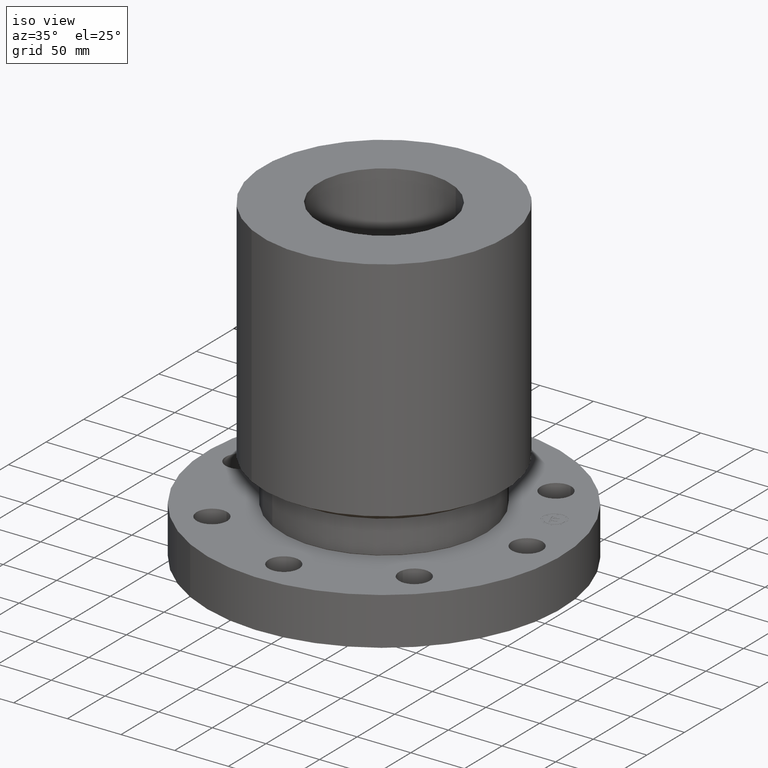
[diagram: clean part render]
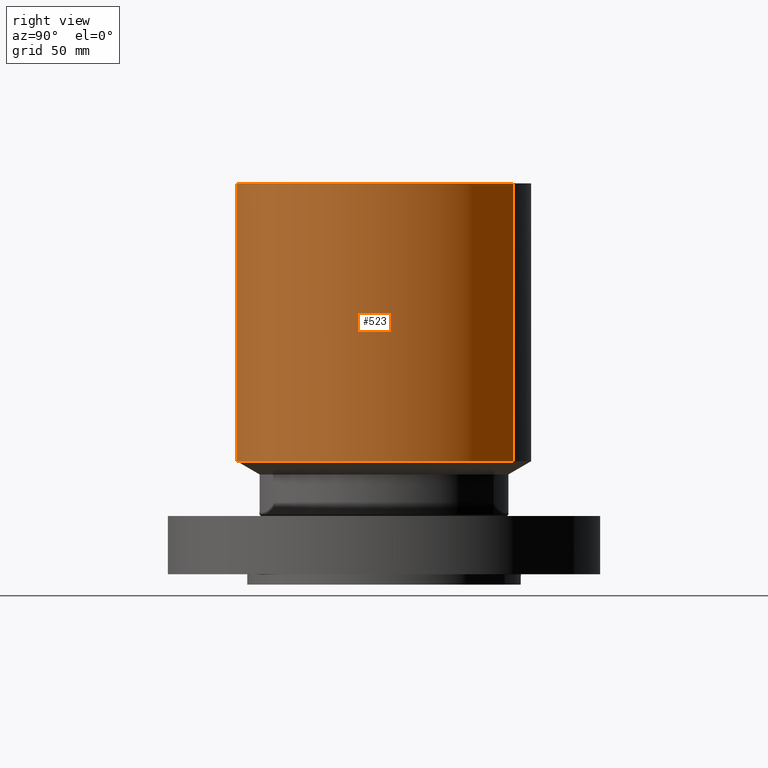
[diagram: tour spotlight — one face highlighted and labeled with its STEP entity id]
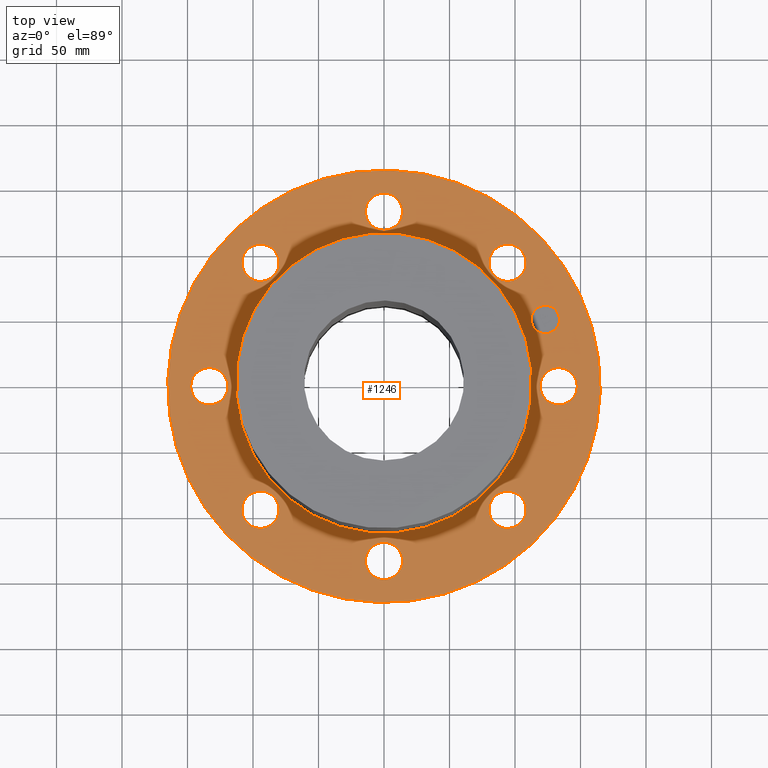
[diagram: tour spotlight — one face highlighted and labeled with its STEP entity id]
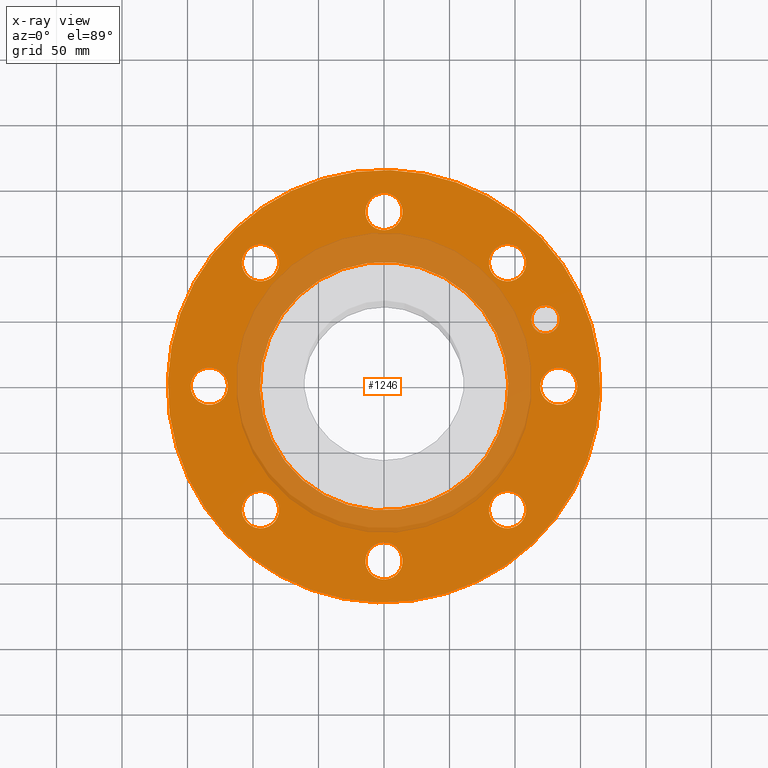
[diagram: x-ray of the same camera — body ghosted, this tour face saturated]
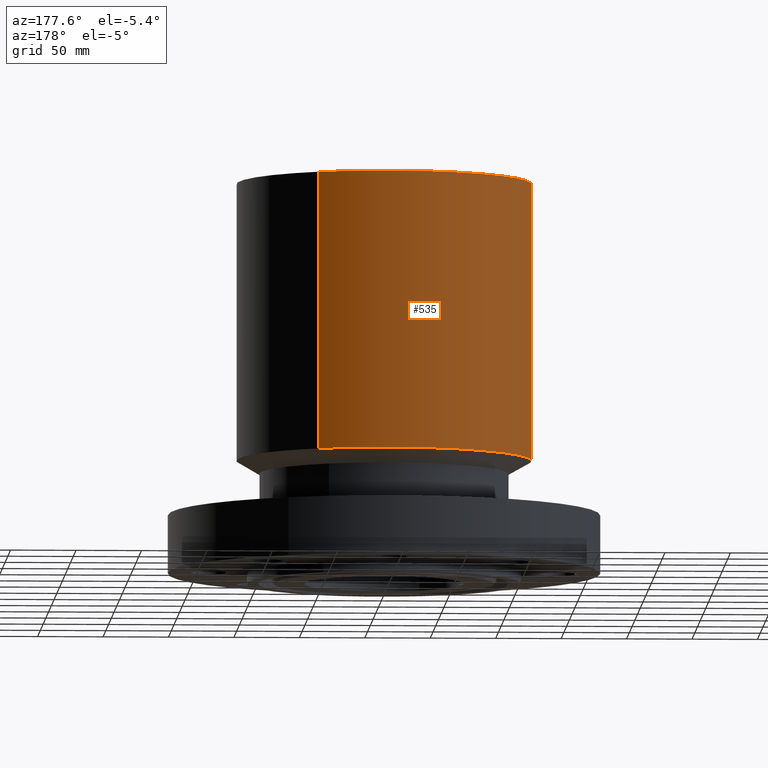
[diagram: tour spotlight — one face highlighted and labeled with its STEP entity id]
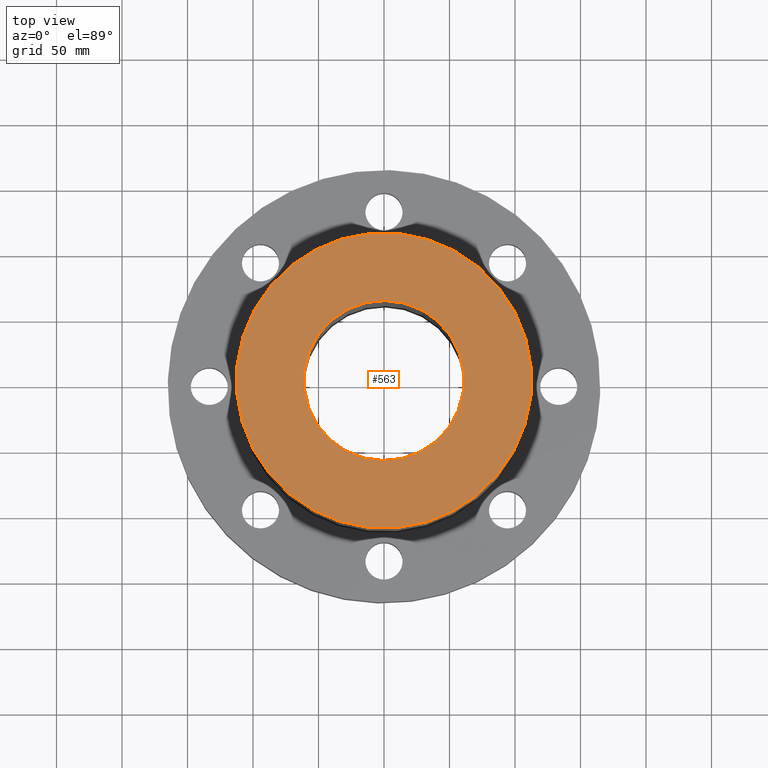
[diagram: tour spotlight — one face highlighted and labeled with its STEP entity id]
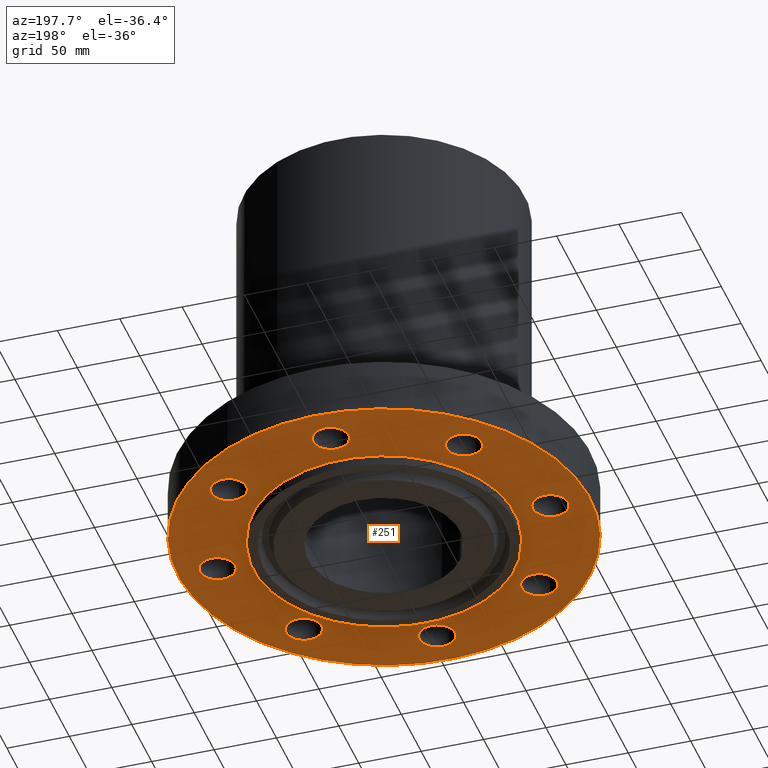
[diagram: tour spotlight — one face highlighted and labeled with its STEP entity id]
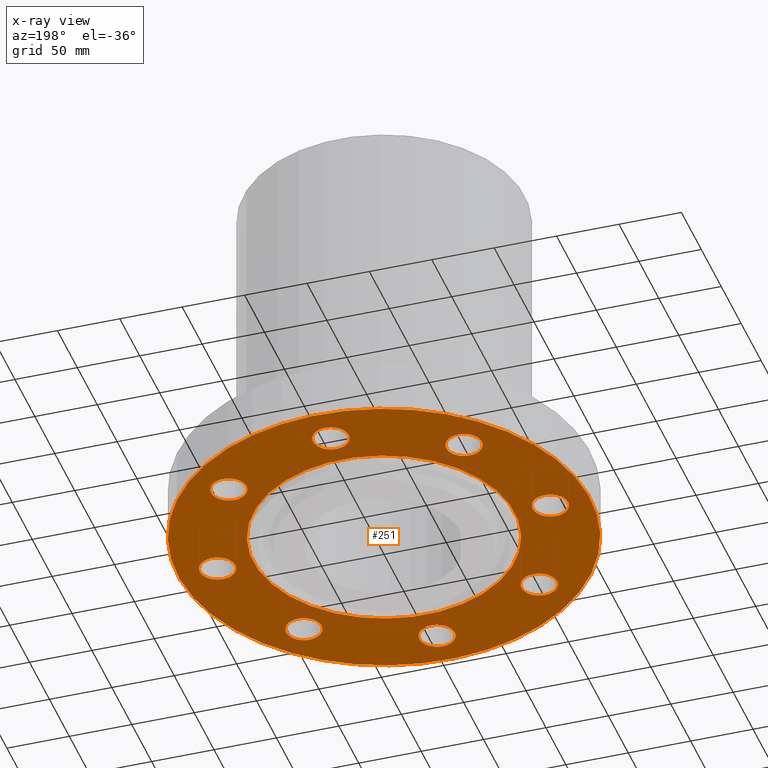
[diagram: x-ray of the same camera — body ghosted, this tour face saturated]
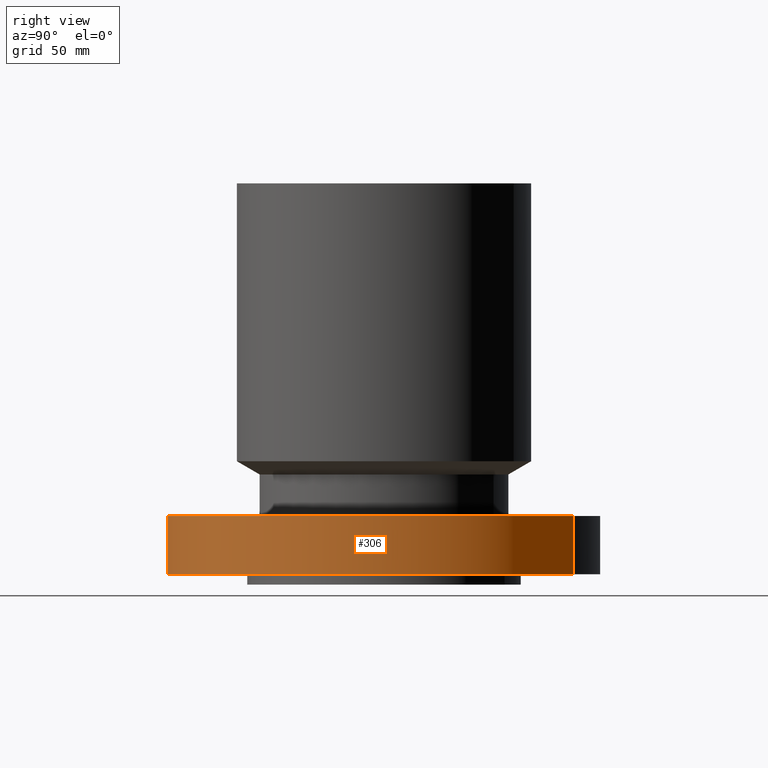
[diagram: tour spotlight — one face highlighted and labeled with its STEP entity id]
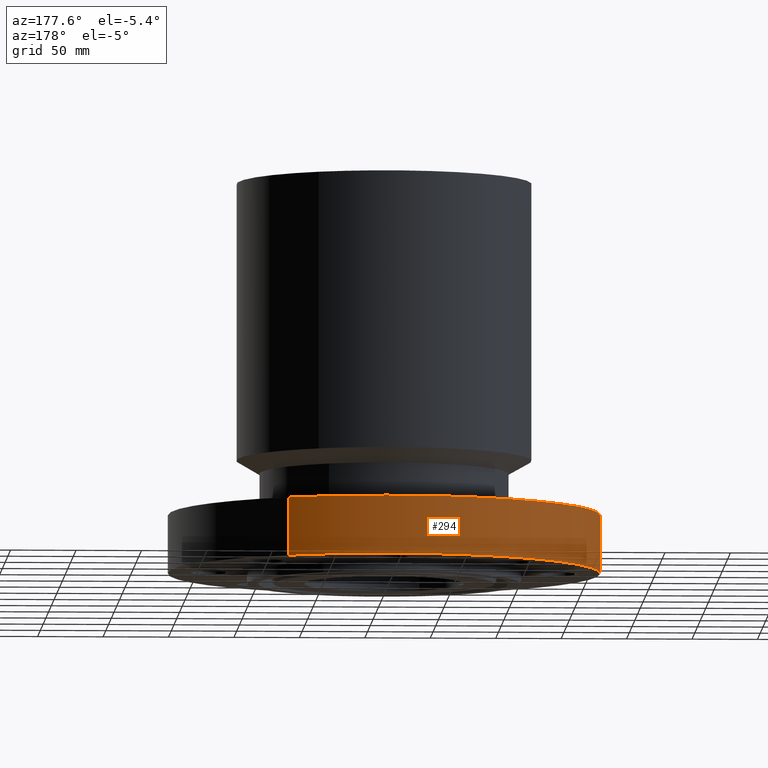
[diagram: tour spotlight — one face highlighted and labeled with its STEP entity id]
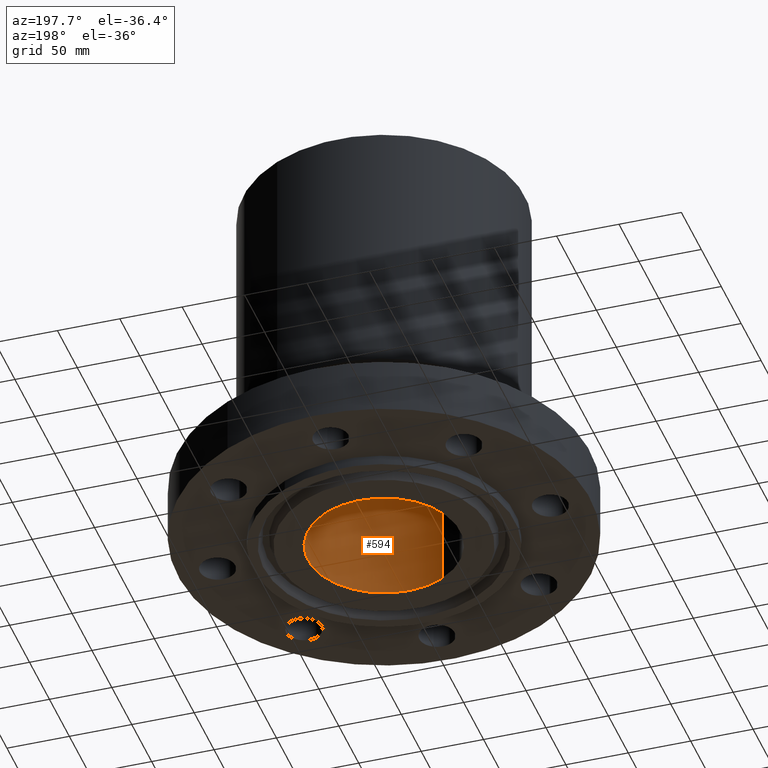
[diagram: tour spotlight — one face highlighted and labeled with its STEP entity id]
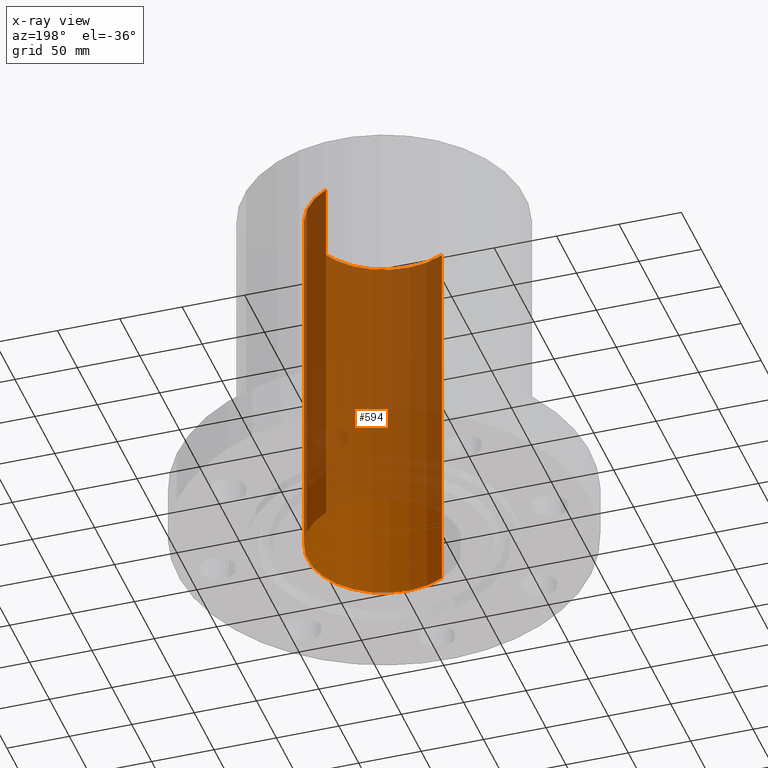
[diagram: x-ray of the same camera — body ghosted, this tour face saturated]
A machine part: a face-by-face anatomy tour. The part has 431 B-rep faces; the first image is the clean iso view, then the 8 largest visible faces are spotlighted one at a time (largest first), each with its STEP entity span.

Face 1 — right view, entity #523. In plain terms, the highlighted cylindrical surface (partial cylindrical patch) has radius 112.776 mm, axis along (0, 0, -1).
Definition (entity closure, byte-faithful):
#464=AXIS2_PLACEMENT_3D('Circle Axis2P3D',#462,#463,$) ;
#496=AXIS2_PLACEMENT_3D('Cylinder Axis2P3D',#493,#494,#495) ;
#507=AXIS2_PLACEMENT_3D('Circle Axis2P3D',#505,#506,$) ;
#459=CARTESIAN_POINT('Vertex',(2.12864939141,3.89646657481,3.39837168575)) ;
#462=CARTESIAN_POINT('Axis2P3D Location',(0.,0.,3.39837168575)) ;
#466=CARTESIAN_POINT('Vertex',(-2.12864939141,-3.89646657481,3.39837168575)) ;
#493=CARTESIAN_POINT('Axis2P3D Location',(0.,0.,5.71850000002)) ;
#498=CARTESIAN_POINT('Line Origine',(2.12864939141,3.89646657481,7.5741858429)) ;
#502=CARTESIAN_POINT('Vertex',(2.12864939141,3.89646657481,11.75)) ;
#505=CARTESIAN_POINT('Axis2P3D Location',(0.,0.,11.75)) ;
#509=CARTESIAN_POINT('Vertex',(-2.12864939141,-3.89646657481,11.75)) ;
#512=CARTESIAN_POINT('Line Origine',(-2.12864939141,-3.89646657481,7.5741858429)) ;
#463=DIRECTION('Axis2P3D Direction',(-0.,0.,0.0393700787402)) ;
#494=DIRECTION('Axis2P3D Direction',(0.,0.,-0.0393700787402)) ;
#495=DIRECTION('Axis2P3D XDirection',(-0.0188750212049,-0.0345504945626,0.)) ;
#499=DIRECTION('Vector Direction',(0.,0.,-0.0393700787402)) ;
#506=DIRECTION('Axis2P3D Direction',(0.,0.,-0.0393700787402)) ;
#513=DIRECTION('Vector Direction',(0.,0.,-0.0393700787402)) ;
#500=VECTOR('Line Direction',#499,0.0393700787402) ;
#514=VECTOR('Line Direction',#513,0.0393700787402) ;
#518=ORIENTED_EDGE('',*,*,#468,.F.) ;
#519=ORIENTED_EDGE('',*,*,#504,.T.) ;
#520=ORIENTED_EDGE('',*,*,#511,.T.) ;
#521=ORIENTED_EDGE('',*,*,#516,.F.) ;
#523=ADVANCED_FACE('PartBody',(#522),#497,.T.) ;
#465=CIRCLE('generated circle',#464,4.44000000002) ;
#508=CIRCLE('generated circle',#507,4.44000000002) ;
#497=CYLINDRICAL_SURFACE('generated cylinder',#496,4.44000000002) ;
#468=EDGE_CURVE('',#460,#467,#465,.F.) ;
#504=EDGE_CURVE('',#460,#503,#501,.F.) ;
#511=EDGE_CURVE('',#503,#510,#508,.T.) ;
#516=EDGE_CURVE('',#467,#510,#515,.F.) ;
#517=EDGE_LOOP('',(#518,#519,#520,#521)) ;
#522=FACE_OUTER_BOUND('',#517,.T.) ;
#501=LINE('Line',#498,#500) ;
#515=LINE('Line',#512,#514) ;
#460=VERTEX_POINT('',#459) ;
#467=VERTEX_POINT('',#466) ;
#503=VERTEX_POINT('',#502) ;
#510=VERTEX_POINT('',#509) ;

Face 2 — top view, entity #1246. An x-ray twin of the same camera follows (body ghosted, this face saturated) — the face is partly hidden behind the body. In plain terms, the highlighted planar face has unit normal (0, 0, -1).
Definition (entity closure, byte-faithful):
#51=AXIS2_PLACEMENT_3D('Circle Axis2P3D',#49,#50,$) ;
#254=AXIS2_PLACEMENT_3D('Circle Axis2P3D',#252,#253,$) ;
#278=AXIS2_PLACEMENT_3D('Circle Axis2P3D',#276,#277,$) ;
#297=AXIS2_PLACEMENT_3D('Circle Axis2P3D',#295,#296,$) ;
#314=AXIS2_PLACEMENT_3D('Circle Axis2P3D',#312,#313,$) ;
#349=AXIS2_PLACEMENT_3D('Circle Axis2P3D',#347,#348,$) ;
#896=AXIS2_PLACEMENT_3D('Circle Axis2P3D',#894,#895,$) ;
#915=AXIS2_PLACEMENT_3D('Circle Axis2P3D',#913,#914,$) ;
#939=AXIS2_PLACEMENT_3D('Circle Axis2P3D',#937,#938,$) ;
#958=AXIS2_PLACEMENT_3D('Circle Axis2P3D',#956,#957,$) ;
#982=AXIS2_PLACEMENT_3D('Circle Axis2P3D',#980,#981,$) ;
#1001=AXIS2_PLACEMENT_3D('Circle Axis2P3D',#999,#1000,$) ;
#1025=AXIS2_PLACEMENT_3D('Circle Axis2P3D',#1023,#1024,$) ;
#1044=AXIS2_PLACEMENT_3D('Circle Axis2P3D',#1042,#1043,$) ;
#1068=AXIS2_PLACEMENT_3D('Circle Axis2P3D',#1066,#1067,$) ;
#1087=AXIS2_PLACEMENT_3D('Circle Axis2P3D',#1085,#1086,$) ;
#1111=AXIS2_PLACEMENT_3D('Circle Axis2P3D',#1109,#1110,$) ;
#1130=AXIS2_PLACEMENT_3D('Circle Axis2P3D',#1128,#1129,$) ;
#1154=AXIS2_PLACEMENT_3D('Circle Axis2P3D',#1152,#1153,$) ;
#1173=AXIS2_PLACEMENT_3D('Circle Axis2P3D',#1171,#1172,$) ;
#1186=AXIS2_PLACEMENT_3D('Plane Axis2P3D',#1183,#1184,#1185) ;
#1230=AXIS2_PLACEMENT_3D('Circle Axis2P3D',#1228,#1229,$) ;
#1239=AXIS2_PLACEMENT_3D('Circle Axis2P3D',#1237,#1238,$) ;
#44=CARTESIAN_POINT('Vertex',(4.75855376536,-0.268478301619,1.75000000001)) ;
#49=CARTESIAN_POINT('Axis2P3D Location',(5.25000000002,0.,1.75000000001)) ;
#53=CARTESIAN_POINT('Vertex',(5.74144623468,0.268478301619,1.75000000001)) ;
#252=CARTESIAN_POINT('Axis2P3D Location',(5.25000000002,0.,1.75000000001)) ;
#273=CARTESIAN_POINT('Vertex',(-3.11626600094,-5.70428665231,1.75000000001)) ;
#276=CARTESIAN_POINT('Axis2P3D Location',(0.,0.,1.75000000001)) ;
#280=CARTESIAN_POINT('Vertex',(3.11626600094,5.70428665231,1.75000000001)) ;
#295=CARTESIAN_POINT('Axis2P3D Location',(0.,0.,1.75000000001)) ;
#312=CARTESIAN_POINT('Axis2P3D Location',(0.,0.,1.75000000001)) ;
#316=CARTESIAN_POINT('Vertex',(1.79065438669,3.27777086867,1.75000000001)) ;
#318=CARTESIAN_POINT('Vertex',(-1.79065438669,-3.27777086867,1.75000000001)) ;
#347=CARTESIAN_POINT('Axis2P3D Location',(0.,0.,1.75000000001)) ;
#891=CARTESIAN_POINT('Vertex',(3.17496280845,-3.5546484638,1.75000000001)) ;
#894=CARTESIAN_POINT('Axis2P3D Location',(3.71231060124,-3.71231060124,1.75000000001)) ;
#898=CARTESIAN_POINT('Vertex',(4.24965839404,-3.86997273868,1.75000000001)) ;
#913=CARTESIAN_POINT('Axis2P3D Location',(3.71231060124,-3.71231060124,1.75000000001)) ;
#934=CARTESIAN_POINT('Vertex',(-0.268478301619,-4.75855376536,1.75000000001)) ;
#937=CARTESIAN_POINT('Axis2P3D Location',(-7.97495153427E-016,-5.25000000002,1.75000000001)) ;
#941=CARTESIAN_POINT('Vertex',(0.268478301619,-5.74144623468,1.75000000001)) ;
#956=CARTESIAN_POINT('Axis2P3D Location',(-7.97495153427E-016,-5.25000000002,1.75000000001)) ;
#977=CARTESIAN_POINT('Vertex',(-3.5546484638,-3.17496280845,1.75000000001)) ;
#980=CARTESIAN_POINT('Axis2P3D Location',(-3.71231060124,-3.71231060124,1.75000000001)) ;
#984=CARTESIAN_POINT('Vertex',(-3.86997273868,-4.24965839404,1.75000000001)) ;
#999=CARTESIAN_POINT('Axis2P3D Location',(-3.71231060124,-3.71231060124,1.75000000001)) ;
#1020=CARTESIAN_POINT('Vertex',(-4.75855376536,0.268478301619,1.75000000001)) ;
#1023=CARTESIAN_POINT('Axis2P3D Location',(-5.25000000002,-6.42939569555E-016,1.75000000001)) ;
#1027=CARTESIAN_POINT('Vertex',(-5.74144623468,-0.268478301619,1.75000000001)) ;
#1042=CARTESIAN_POINT('Axis2P3D Location',(-5.25000000002,-6.42939569555E-016,1.75000000001)) ;
#1063=CARTESIAN_POINT('Vertex',(-3.17496280845,3.5546484638,1.75000000001)) ;
#1066=CARTESIAN_POINT('Axis2P3D Location',(-3.71231060124,3.71231060124,1.75000000001)) ;
#1070=CARTESIAN_POINT('Vertex',(-4.24965839404,3.86997273868,1.75000000001)) ;
#1085=CARTESIAN_POINT('Axis2P3D Location',(-3.71231060124,3.71231060124,1.75000000001)) ;
#1106=CARTESIAN_POINT('Vertex',(0.268478301619,4.75855376536,1.75000000001)) ;
#1109=CARTESIAN_POINT('Axis2P3D Location',(-9.64409354332E-016,5.25000000002,1.75000000001)) ;
#1113=CARTESIAN_POINT('Vertex',(-0.268478301619,5.74144623468,1.75000000001)) ;
#1128=CARTESIAN_POINT('Axis2P3D Location',(-9.64409354332E-016,5.25000000002,1.75000000001)) ;
#1149=CARTESIAN_POINT('Vertex',(3.5546484638,3.17496280845,1.75000000001)) ;
#1152=CARTESIAN_POINT('Axis2P3D Location',(3.71231060124,3.71231060124,1.75000000001)) ;
#1156=CARTESIAN_POINT('Vertex',(3.86997273868,4.24965839404,1.75000000001)) ;
#1171=CARTESIAN_POINT('Axis2P3D Location',(3.71231060124,3.71231060124,1.75000000001)) ;
#1183=CARTESIAN_POINT('Axis2P3D Location',(0.,6.50000000003,1.75000000001)) ;
#1228=CARTESIAN_POINT('Axis2P3D Location',(4.8503675457,2.00908801992,1.75000000001)) ;
#1232=CARTESIAN_POINT('Vertex',(5.01300800283,1.61643922253,1.75000000001)) ;
#1234=CARTESIAN_POINT('Vertex',(4.68772708857,2.40173681732,1.75000000001)) ;
#1237=CARTESIAN_POINT('Axis2P3D Location',(4.8503675457,2.00908801992,1.75000000001)) ;
#50=DIRECTION('Axis2P3D Direction',(0.,-0.,0.0393700787402)) ;
#253=DIRECTION('Axis2P3D Direction',(0.,-0.,0.0393700787402)) ;
#277=DIRECTION('Axis2P3D Direction',(0.,0.,-0.0393700787402)) ;
#296=DIRECTION('Axis2P3D Direction',(0.,0.,-0.0393700787402)) ;
#313=DIRECTION('Axis2P3D Direction',(0.,0.,-0.0393700787402)) ;
#348=DIRECTION('Axis2P3D Direction',(0.,0.,-0.0393700787402)) ;
#895=DIRECTION('Axis2P3D Direction',(-0.,0.,0.0393700787402)) ;
#914=DIRECTION('Axis2P3D Direction',(-0.,0.,0.0393700787402)) ;
#938=DIRECTION('Axis2P3D Direction',(-0.,0.,0.0393700787402)) ;
#957=DIRECTION('Axis2P3D Direction',(-0.,0.,0.0393700787402)) ;
#981=DIRECTION('Axis2P3D Direction',(0.,0.,0.0393700787402)) ;
#1000=DIRECTION('Axis2P3D Direction',(0.,0.,0.0393700787402)) ;
#1024=DIRECTION('Axis2P3D Direction',(0.,0.,0.0393700787402)) ;
#1043=DIRECTION('Axis2P3D Direction',(0.,0.,0.0393700787402)) ;
#1067=DIRECTION('Axis2P3D Direction',(0.,0.,0.0393700787402)) ;
#1086=DIRECTION('Axis2P3D Direction',(0.,0.,0.0393700787402)) ;
#1110=DIRECTION('Axis2P3D Direction',(0.,0.,0.0393700787402)) ;
#1129=DIRECTION('Axis2P3D Direction',(0.,0.,0.0393700787402)) ;
#1153=DIRECTION('Axis2P3D Direction',(0.,-0.,0.0393700787402)) ;
#1172=DIRECTION('Axis2P3D Direction',(0.,-0.,0.0393700787402)) ;
#1184=DIRECTION('Axis2P3D Direction',(0.,0.,-0.0393700787402)) ;
#1185=DIRECTION('Axis2P3D XDirection',(0.0393700787402,0.,0.)) ;
#1229=DIRECTION('Axis2P3D Direction',(0.,0.,-0.0393700787402)) ;
#1238=DIRECTION('Axis2P3D Direction',(0.,0.,-0.0393700787402)) ;
#1189=ORIENTED_EDGE('',*,*,#299,.F.) ;
#1190=ORIENTED_EDGE('',*,*,#282,.F.) ;
#1193=ORIENTED_EDGE('',*,*,#55,.T.) ;
#1194=ORIENTED_EDGE('',*,*,#256,.T.) ;
#1197=ORIENTED_EDGE('',*,*,#351,.T.) ;
#1198=ORIENTED_EDGE('',*,*,#320,.T.) ;
#1201=ORIENTED_EDGE('',*,*,#917,.T.) ;
#1202=ORIENTED_EDGE('',*,*,#900,.T.) ;
#1205=ORIENTED_EDGE('',*,*,#960,.T.) ;
#1206=ORIENTED_EDGE('',*,*,#943,.T.) ;
#1209=ORIENTED_EDGE('',*,*,#1003,.T.) ;
#1210=ORIENTED_EDGE('',*,*,#986,.T.) ;
#1213=ORIENTED_EDGE('',*,*,#1046,.T.) ;
#1214=ORIENTED_EDGE('',*,*,#1029,.T.) ;
#1217=ORIENTED_EDGE('',*,*,#1089,.T.) ;
#1218=ORIENTED_EDGE('',*,*,#1072,.T.) ;
#1221=ORIENTED_EDGE('',*,*,#1132,.T.) ;
#1222=ORIENTED_EDGE('',*,*,#1115,.T.) ;
#1225=ORIENTED_EDGE('',*,*,#1175,.T.) ;
#1226=ORIENTED_EDGE('',*,*,#1158,.T.) ;
#1243=ORIENTED_EDGE('',*,*,#1236,.F.) ;
#1244=ORIENTED_EDGE('',*,*,#1241,.F.) ;
#1195=FACE_BOUND('',#1192,.T.) ;
#1199=FACE_BOUND('',#1196,.T.) ;
#1203=FACE_BOUND('',#1200,.T.) ;
#1207=FACE_BOUND('',#1204,.T.) ;
#1211=FACE_BOUND('',#1208,.T.) ;
#1215=FACE_BOUND('',#1212,.T.) ;
#1219=FACE_BOUND('',#1216,.T.) ;
#1223=FACE_BOUND('',#1220,.T.) ;
#1227=FACE_BOUND('',#1224,.T.) ;
#1245=FACE_BOUND('',#1242,.T.) ;
#1246=ADVANCED_FACE('PartBody',(#1191,#1195,#1199,#1203,#1207,#1211,#1215,#1219,#1223,#1227,#1245),#1187,.F.) ;
#52=CIRCLE('generated circle',#51,0.560000000002) ;
#255=CIRCLE('generated circle',#254,0.560000000002) ;
#279=CIRCLE('generated circle',#278,6.50000000003) ;
#298=CIRCLE('generated circle',#297,6.50000000003) ;
#315=CIRCLE('generated circle',#314,3.73500000001) ;
#350=CIRCLE('generated circle',#349,3.73500000001) ;
#897=CIRCLE('generated circle',#896,0.560000000002) ;
#916=CIRCLE('generated circle',#915,0.560000000002) ;
#940=CIRCLE('generated circle',#939,0.560000000002) ;
#959=CIRCLE('generated circle',#958,0.560000000002) ;
#983=CIRCLE('generated circle',#982,0.560000000002) ;
#1002=CIRCLE('generated circle',#1001,0.560000000002) ;
#1026=CIRCLE('generated circle',#1025,0.560000000002) ;
#1045=CIRCLE('generated circle',#1044,0.560000000002) ;
#1069=CIRCLE('generated circle',#1068,0.560000000002) ;
#1088=CIRCLE('generated circle',#1087,0.560000000002) ;
#1112=CIRCLE('generated circle',#1111,0.560000000002) ;
#1131=CIRCLE('generated circle',#1130,0.560000000002) ;
#1155=CIRCLE('generated circle',#1154,0.560000000002) ;
#1174=CIRCLE('generated circle',#1173,0.560000000002) ;
#1231=CIRCLE('generated circle',#1230,0.424999995752) ;
#1240=CIRCLE('generated circle',#1239,0.424999995752) ;
#55=EDGE_CURVE('',#54,#45,#52,.F.) ;
#256=EDGE_CURVE('',#45,#54,#255,.F.) ;
#282=EDGE_CURVE('',#274,#281,#279,.T.) ;
#299=EDGE_CURVE('',#281,#274,#298,.T.) ;
#320=EDGE_CURVE('',#317,#319,#315,.T.) ;
#351=EDGE_CURVE('',#319,#317,#350,.T.) ;
#900=EDGE_CURVE('',#899,#892,#897,.F.) ;
#917=EDGE_CURVE('',#892,#899,#916,.F.) ;
#943=EDGE_CURVE('',#942,#935,#940,.F.) ;
#960=EDGE_CURVE('',#935,#942,#959,.F.) ;
#986=EDGE_CURVE('',#985,#978,#983,.F.) ;
#1003=EDGE_CURVE('',#978,#985,#1002,.F.) ;
#1029=EDGE_CURVE('',#1028,#1021,#1026,.F.) ;
#1046=EDGE_CURVE('',#1021,#1028,#1045,.F.) ;
#1072=EDGE_CURVE('',#1071,#1064,#1069,.F.) ;
#1089=EDGE_CURVE('',#1064,#1071,#1088,.F.) ;
#1115=EDGE_CURVE('',#1114,#1107,#1112,.F.) ;
#1132=EDGE_CURVE('',#1107,#1114,#1131,.F.) ;
#1158=EDGE_CURVE('',#1157,#1150,#1155,.F.) ;
#1175=EDGE_CURVE('',#1150,#1157,#1174,.F.) ;
#1236=EDGE_CURVE('',#1233,#1235,#1231,.F.) ;
#1241=EDGE_CURVE('',#1235,#1233,#1240,.F.) ;
#1188=EDGE_LOOP('',(#1189,#1190)) ;
#1192=EDGE_LOOP('',(#1193,#1194)) ;
#1196=EDGE_LOOP('',(#1197,#1198)) ;
#1200=EDGE_LOOP('',(#1201,#1202)) ;
#1204=EDGE_LOOP('',(#1205,#1206)) ;
#1208=EDGE_LOOP('',(#1209,#1210)) ;
#1212=EDGE_LOOP('',(#1213,#1214)) ;
#1216=EDGE_LOOP('',(#1217,#1218)) ;
#1220=EDGE_LOOP('',(#1221,#1222)) ;
#1224=EDGE_LOOP('',(#1225,#1226)) ;
#1242=EDGE_LOOP('',(#1243,#1244)) ;
#1191=FACE_OUTER_BOUND('',#1188,.T.) ;
#1187=PLANE('',#1186) ;
#45=VERTEX_POINT('',#44) ;
#54=VERTEX_POINT('',#53) ;
#274=VERTEX_POINT('',#273) ;
#281=VERTEX_POINT('',#280) ;
#317=VERTEX_POINT('',#316) ;
#319=VERTEX_POINT('',#318) ;
#892=VERTEX_POINT('',#891) ;
#899=VERTEX_POINT('',#898) ;
#935=VERTEX_POINT('',#934) ;
#942=VERTEX_POINT('',#941) ;
#978=VERTEX_POINT('',#977) ;
#985=VERTEX_POINT('',#984) ;
#1021=VERTEX_POINT('',#1020) ;
#1028=VERTEX_POINT('',#1027) ;
#1064=VERTEX_POINT('',#1063) ;
#1071=VERTEX_POINT('',#1070) ;
#1107=VERTEX_POINT('',#1106) ;
#1114=VERTEX_POINT('',#1113) ;
#1150=VERTEX_POINT('',#1149) ;
#1157=VERTEX_POINT('',#1156) ;
#1233=VERTEX_POINT('',#1232) ;
#1235=VERTEX_POINT('',#1234) ;

Face 3 — auxiliary view, entity #535. In plain terms, the highlighted cylindrical surface (partial cylindrical patch) has radius 112.776 mm, axis along (0, 0, -1).
Definition (entity closure, byte-faithful):
#483=AXIS2_PLACEMENT_3D('Circle Axis2P3D',#481,#482,$) ;
#496=AXIS2_PLACEMENT_3D('Cylinder Axis2P3D',#493,#494,#495) ;
#526=AXIS2_PLACEMENT_3D('Circle Axis2P3D',#524,#525,$) ;
#459=CARTESIAN_POINT('Vertex',(2.12864939141,3.89646657481,3.39837168575)) ;
#466=CARTESIAN_POINT('Vertex',(-2.12864939141,-3.89646657481,3.39837168575)) ;
#481=CARTESIAN_POINT('Axis2P3D Location',(0.,0.,3.39837168575)) ;
#493=CARTESIAN_POINT('Axis2P3D Location',(0.,0.,5.71850000002)) ;
#498=CARTESIAN_POINT('Line Origine',(2.12864939141,3.89646657481,7.5741858429)) ;
#502=CARTESIAN_POINT('Vertex',(2.12864939141,3.89646657481,11.75)) ;
#509=CARTESIAN_POINT('Vertex',(-2.12864939141,-3.89646657481,11.75)) ;
#512=CARTESIAN_POINT('Line Origine',(-2.12864939141,-3.89646657481,7.5741858429)) ;
#524=CARTESIAN_POINT('Axis2P3D Location',(0.,0.,11.75)) ;
#482=DIRECTION('Axis2P3D Direction',(-0.,0.,0.0393700787402)) ;
#494=DIRECTION('Axis2P3D Direction',(0.,0.,-0.0393700787402)) ;
#495=DIRECTION('Axis2P3D XDirection',(-0.0188750212049,-0.0345504945626,0.)) ;
#499=DIRECTION('Vector Direction',(0.,0.,-0.0393700787402)) ;
#513=DIRECTION('Vector Direction',(0.,0.,-0.0393700787402)) ;
#525=DIRECTION('Axis2P3D Direction',(0.,0.,-0.0393700787402)) ;
#500=VECTOR('Line Direction',#499,0.0393700787402) ;
#514=VECTOR('Line Direction',#513,0.0393700787402) ;
#530=ORIENTED_EDGE('',*,*,#485,.F.) ;
#531=ORIENTED_EDGE('',*,*,#516,.T.) ;
#532=ORIENTED_EDGE('',*,*,#528,.T.) ;
#533=ORIENTED_EDGE('',*,*,#504,.F.) ;
#535=ADVANCED_FACE('PartBody',(#534),#497,.T.) ;
#484=CIRCLE('generated circle',#483,4.44000000002) ;
#527=CIRCLE('generated circle',#526,4.44000000002) ;
#497=CYLINDRICAL_SURFACE('generated cylinder',#496,4.44000000002) ;
#485=EDGE_CURVE('',#467,#460,#484,.F.) ;
#504=EDGE_CURVE('',#460,#503,#501,.F.) ;
#516=EDGE_CURVE('',#467,#510,#515,.F.) ;
#528=EDGE_CURVE('',#510,#503,#527,.T.) ;
#529=EDGE_LOOP('',(#530,#531,#532,#533)) ;
#534=FACE_OUTER_BOUND('',#529,.T.) ;
#501=LINE('Line',#498,#500) ;
#515=LINE('Line',#512,#514) ;
#460=VERTEX_POINT('',#459) ;
#467=VERTEX_POINT('',#466) ;
#503=VERTEX_POINT('',#502) ;
#510=VERTEX_POINT('',#509) ;

Face 4 — top view, entity #563. In plain terms, the highlighted planar face has unit normal (0, 0, -1).
Definition (entity closure, byte-faithful):
#507=AXIS2_PLACEMENT_3D('Circle Axis2P3D',#505,#506,$) ;
#526=AXIS2_PLACEMENT_3D('Circle Axis2P3D',#524,#525,$) ;
#539=AXIS2_PLACEMENT_3D('Plane Axis2P3D',#536,#537,#538) ;
#547=AXIS2_PLACEMENT_3D('Circle Axis2P3D',#545,#546,$) ;
#556=AXIS2_PLACEMENT_3D('Circle Axis2P3D',#554,#555,$) ;
#502=CARTESIAN_POINT('Vertex',(2.12864939141,3.89646657481,11.75)) ;
#505=CARTESIAN_POINT('Axis2P3D Location',(0.,0.,11.75)) ;
#509=CARTESIAN_POINT('Vertex',(-2.12864939141,-3.89646657481,11.75)) ;
#524=CARTESIAN_POINT('Axis2P3D Location',(0.,0.,11.75)) ;
#536=CARTESIAN_POINT('Axis2P3D Location',(0.,4.44000000002,11.75)) ;
#545=CARTESIAN_POINT('Axis2P3D Location',(0.,0.,11.75)) ;
#549=CARTESIAN_POINT('Vertex',(-1.15301842035,-2.11058606135,11.75)) ;
#551=CARTESIAN_POINT('Vertex',(1.15301842035,2.11058606135,11.75)) ;
#554=CARTESIAN_POINT('Axis2P3D Location',(0.,0.,11.75)) ;
#506=DIRECTION('Axis2P3D Direction',(0.,0.,-0.0393700787402)) ;
#525=DIRECTION('Axis2P3D Direction',(0.,0.,-0.0393700787402)) ;
#537=DIRECTION('Axis2P3D Direction',(0.,0.,-0.0393700787402)) ;
#538=DIRECTION('Axis2P3D XDirection',(0.0393700787402,0.,0.)) ;
#546=DIRECTION('Axis2P3D Direction',(0.,0.,-0.0393700787402)) ;
#555=DIRECTION('Axis2P3D Direction',(0.,0.,-0.0393700787402)) ;
#542=ORIENTED_EDGE('',*,*,#511,.F.) ;
#543=ORIENTED_EDGE('',*,*,#528,.F.) ;
#560=ORIENTED_EDGE('',*,*,#553,.T.) ;
#561=ORIENTED_EDGE('',*,*,#558,.T.) ;
#562=FACE_BOUND('',#559,.T.) ;
#563=ADVANCED_FACE('PartBody',(#544,#562),#540,.F.) ;
#508=CIRCLE('generated circle',#507,4.44000000002) ;
#527=CIRCLE('generated circle',#526,4.44000000002) ;
#548=CIRCLE('generated circle',#547,2.40500000001) ;
#557=CIRCLE('generated circle',#556,2.40500000001) ;
#511=EDGE_CURVE('',#503,#510,#508,.T.) ;
#528=EDGE_CURVE('',#510,#503,#527,.T.) ;
#553=EDGE_CURVE('',#550,#552,#548,.T.) ;
#558=EDGE_CURVE('',#552,#550,#557,.T.) ;
#541=EDGE_LOOP('',(#542,#543)) ;
#559=EDGE_LOOP('',(#560,#561)) ;
#544=FACE_OUTER_BOUND('',#541,.T.) ;
#540=PLANE('',#539) ;
#503=VERTEX_POINT('',#502) ;
#510=VERTEX_POINT('',#509) ;
#550=VERTEX_POINT('',#549) ;
#552=VERTEX_POINT('',#551) ;

Face 5 — auxiliary view, entity #251. An x-ray twin of the same camera follows (body ghosted, this face saturated) — the face is partly hidden behind the body. In plain terms, the highlighted planar face has unit normal (0, 0, -1).
Definition (entity closure, byte-faithful):
#65=AXIS2_PLACEMENT_3D('Circle Axis2P3D',#63,#64,$) ;
#78=AXIS2_PLACEMENT_3D('Plane Axis2P3D',#75,#76,#77) ;
#82=AXIS2_PLACEMENT_3D('Circle Axis2P3D',#80,#81,$) ;
#91=AXIS2_PLACEMENT_3D('Circle Axis2P3D',#89,#90,$) ;
#100=AXIS2_PLACEMENT_3D('Circle Axis2P3D',#98,#99,$) ;
#109=AXIS2_PLACEMENT_3D('Circle Axis2P3D',#107,#108,$) ;
#118=AXIS2_PLACEMENT_3D('Circle Axis2P3D',#116,#117,$) ;
#127=AXIS2_PLACEMENT_3D('Circle Axis2P3D',#125,#126,$) ;
#136=AXIS2_PLACEMENT_3D('Circle Axis2P3D',#134,#135,$) ;
#145=AXIS2_PLACEMENT_3D('Circle Axis2P3D',#143,#144,$) ;
#154=AXIS2_PLACEMENT_3D('Circle Axis2P3D',#152,#153,$) ;
#163=AXIS2_PLACEMENT_3D('Circle Axis2P3D',#161,#162,$) ;
#172=AXIS2_PLACEMENT_3D('Circle Axis2P3D',#170,#171,$) ;
#181=AXIS2_PLACEMENT_3D('Circle Axis2P3D',#179,#180,$) ;
#190=AXIS2_PLACEMENT_3D('Circle Axis2P3D',#188,#189,$) ;
#199=AXIS2_PLACEMENT_3D('Circle Axis2P3D',#197,#198,$) ;
#208=AXIS2_PLACEMENT_3D('Circle Axis2P3D',#206,#207,$) ;
#217=AXIS2_PLACEMENT_3D('Circle Axis2P3D',#215,#216,$) ;
#226=AXIS2_PLACEMENT_3D('Circle Axis2P3D',#224,#225,$) ;
#235=AXIS2_PLACEMENT_3D('Circle Axis2P3D',#233,#234,$) ;
#244=AXIS2_PLACEMENT_3D('Circle Axis2P3D',#242,#243,$) ;
#46=CARTESIAN_POINT('Vertex',(4.75855376536,-0.268478301619,2.2401153548E-016)) ;
#60=CARTESIAN_POINT('Vertex',(5.74144623468,0.268478301619,2.2401153548E-016)) ;
#63=CARTESIAN_POINT('Axis2P3D Location',(5.25000000002,0.,0.)) ;
#75=CARTESIAN_POINT('Axis2P3D Location',(0.,3.48137906988,0.)) ;
#80=CARTESIAN_POINT('Axis2P3D Location',(0.,0.,0.)) ;
#84=CARTESIAN_POINT('Vertex',(-3.11626600094,-5.70428665231,1.1189649382E-015)) ;
#86=CARTESIAN_POINT('Vertex',(3.11626600094,5.70428665231,1.1189649382E-015)) ;
#89=CARTESIAN_POINT('Axis2P3D Location',(0.,0.,0.)) ;
#98=CARTESIAN_POINT('Axis2P3D Location',(5.25000000002,0.,0.)) ;
#107=CARTESIAN_POINT('Axis2P3D Location',(0.,0.,0.)) ;
#111=CARTESIAN_POINT('Vertex',(1.97763034675,3.62002806781,0.)) ;
#113=CARTESIAN_POINT('Vertex',(-1.97763034675,-3.62002806781,0.)) ;
#116=CARTESIAN_POINT('Axis2P3D Location',(0.,0.,0.)) ;
#125=CARTESIAN_POINT('Axis2P3D Location',(3.71231060124,-3.71231060124,0.)) ;
#129=CARTESIAN_POINT('Vertex',(4.24965839404,-3.86997273868,0.)) ;
#131=CARTESIAN_POINT('Vertex',(3.17496280845,-3.5546484638,0.)) ;
#134=CARTESIAN_POINT('Axis2P3D Location',(3.71231060124,-3.71231060124,0.)) ;
#143=CARTESIAN_POINT('Axis2P3D Location',(-2.79741234551E-016,-5.25000000002,0.)) ;
#147=CARTESIAN_POINT('Vertex',(0.268478301619,-5.74144623468,0.)) ;
#149=CARTESIAN_POINT('Vertex',(-0.268478301619,-4.75855376536,0.)) ;
#152=CARTESIAN_POINT('Axis2P3D Location',(-6.99353086378E-016,-5.25000000002,0.)) ;
#161=CARTESIAN_POINT('Axis2P3D Location',(-3.71231060124,-3.71231060124,0.)) ;
#165=CARTESIAN_POINT('Vertex',(-3.86997273868,-4.24965839404,0.)) ;
#167=CARTESIAN_POINT('Vertex',(-3.5546484638,-3.17496280845,0.)) ;
#170=CARTESIAN_POINT('Axis2P3D Location',(-3.71231060124,-3.71231060124,0.)) ;
#179=CARTESIAN_POINT('Axis2P3D Location',(-5.25000000002,-5.59482469102E-016,0.)) ;
#183=CARTESIAN_POINT('Vertex',(-5.74144623468,-0.268478301619,0.)) ;
#185=CARTESIAN_POINT('Vertex',(-4.75855376536,0.268478301619,0.)) ;
#188=CARTESIAN_POINT('Axis2P3D Location',(-5.25000000002,0.,0.)) ;
#197=CARTESIAN_POINT('Axis2P3D Location',(-3.71231060124,3.71231060124,0.)) ;
#201=CARTESIAN_POINT('Vertex',(-4.24965839404,3.86997273868,0.)) ;
#203=CARTESIAN_POINT('Vertex',(-3.17496280845,3.5546484638,0.)) ;
#206=CARTESIAN_POINT('Axis2P3D Location',(-3.71231060124,3.71231060124,0.)) ;
#215=CARTESIAN_POINT('Axis2P3D Location',(-1.46864148139E-015,5.25000000002,0.)) ;
#219=CARTESIAN_POINT('Vertex',(-0.268478301619,5.74144623468,0.)) ;
#221=CARTESIAN_POINT('Vertex',(0.268478301619,4.75855376536,0.)) ;
#224=CARTESIAN_POINT('Axis2P3D Location',(-9.09159012291E-016,5.25000000002,0.)) ;
#233=CARTESIAN_POINT('Axis2P3D Location',(3.71231060124,3.71231060124,0.)) ;
#237=CARTESIAN_POINT('Vertex',(3.86997273868,4.24965839404,0.)) ;
#239=CARTESIAN_POINT('Vertex',(3.5546484638,3.17496280845,0.)) ;
#242=CARTESIAN_POINT('Axis2P3D Location',(3.71231060124,3.71231060124,0.)) ;
#64=DIRECTION('Axis2P3D Direction',(0.,-0.,0.0393700787402)) ;
#76=DIRECTION('Axis2P3D Direction',(0.,0.,-0.0393700787402)) ;
#77=DIRECTION('Axis2P3D XDirection',(0.0393700787402,0.,0.)) ;
#81=DIRECTION('Axis2P3D Direction',(0.,0.,-0.0393700787402)) ;
#90=DIRECTION('Axis2P3D Direction',(0.,0.,-0.0393700787402)) ;
#99=DIRECTION('Axis2P3D Direction',(0.,0.,-0.0393700787402)) ;
#108=DIRECTION('Axis2P3D Direction',(0.,0.,-0.0393700787402)) ;
#117=DIRECTION('Axis2P3D Direction',(0.,0.,-0.0393700787402)) ;
#126=DIRECTION('Axis2P3D Direction',(0.,0.,-0.0393700787402)) ;
#135=DIRECTION('Axis2P3D Direction',(0.,0.,-0.0393700787402)) ;
#144=DIRECTION('Axis2P3D Direction',(0.,0.,-0.0393700787402)) ;
#153=DIRECTION('Axis2P3D Direction',(0.,0.,-0.0393700787402)) ;
#162=DIRECTION('Axis2P3D Direction',(0.,0.,-0.0393700787402)) ;
#171=DIRECTION('Axis2P3D Direction',(0.,0.,-0.0393700787402)) ;
#180=DIRECTION('Axis2P3D Direction',(0.,0.,-0.0393700787402)) ;
#189=DIRECTION('Axis2P3D Direction',(0.,0.,-0.0393700787402)) ;
#198=DIRECTION('Axis2P3D Direction',(0.,0.,-0.0393700787402)) ;
#207=DIRECTION('Axis2P3D Direction',(0.,0.,-0.0393700787402)) ;
#216=DIRECTION('Axis2P3D Direction',(0.,0.,-0.0393700787402)) ;
#225=DIRECTION('Axis2P3D Direction',(0.,0.,-0.0393700787402)) ;
#234=DIRECTION('Axis2P3D Direction',(0.,0.,-0.0393700787402)) ;
#243=DIRECTION('Axis2P3D Direction',(0.,0.,-0.0393700787402)) ;
#95=ORIENTED_EDGE('',*,*,#88,.T.) ;
#96=ORIENTED_EDGE('',*,*,#93,.T.) ;
#104=ORIENTED_EDGE('',*,*,#102,.F.) ;
#105=ORIENTED_EDGE('',*,*,#67,.F.) ;
#122=ORIENTED_EDGE('',*,*,#115,.F.) ;
#123=ORIENTED_EDGE('',*,*,#120,.F.) ;
#140=ORIENTED_EDGE('',*,*,#133,.F.) ;
#141=ORIENTED_EDGE('',*,*,#138,.F.) ;
#158=ORIENTED_EDGE('',*,*,#151,.F.) ;
#159=ORIENTED_EDGE('',*,*,#156,.F.) ;
#176=ORIENTED_EDGE('',*,*,#169,.F.) ;
#177=ORIENTED_EDGE('',*,*,#174,.F.) ;
#194=ORIENTED_EDGE('',*,*,#187,.F.) ;
#195=ORIENTED_EDGE('',*,*,#192,.F.) ;
#212=ORIENTED_EDGE('',*,*,#205,.F.) ;
#213=ORIENTED_EDGE('',*,*,#210,.F.) ;
#230=ORIENTED_EDGE('',*,*,#223,.F.) ;
#231=ORIENTED_EDGE('',*,*,#228,.F.) ;
#248=ORIENTED_EDGE('',*,*,#241,.F.) ;
#249=ORIENTED_EDGE('',*,*,#246,.F.) ;
#106=FACE_BOUND('',#103,.T.) ;
#124=FACE_BOUND('',#121,.T.) ;
#142=FACE_BOUND('',#139,.T.) ;
#160=FACE_BOUND('',#157,.T.) ;
#178=FACE_BOUND('',#175,.T.) ;
#196=FACE_BOUND('',#193,.T.) ;
#214=FACE_BOUND('',#211,.T.) ;
#232=FACE_BOUND('',#229,.T.) ;
#250=FACE_BOUND('',#247,.T.) ;
#251=ADVANCED_FACE('PartBody',(#97,#106,#124,#142,#160,#178,#196,#214,#232,#250),#79,.T.) ;
#66=CIRCLE('generated circle',#65,0.560000000002) ;
#83=CIRCLE('generated circle',#82,6.50000000003) ;
#92=CIRCLE('generated circle',#91,6.50000000003) ;
#101=CIRCLE('generated circle',#100,0.560000000002) ;
#110=CIRCLE('generated circle',#109,4.12500000002) ;
#119=CIRCLE('generated circle',#118,4.12500000002) ;
#128=CIRCLE('generated circle',#127,0.560000000002) ;
#137=CIRCLE('generated circle',#136,0.560000000002) ;
#146=CIRCLE('generated circle',#145,0.560000000002) ;
#155=CIRCLE('generated circle',#154,0.560000000002) ;
#164=CIRCLE('generated circle',#163,0.560000000002) ;
#173=CIRCLE('generated circle',#172,0.560000000002) ;
#182=CIRCLE('generated circle',#181,0.560000000002) ;
#191=CIRCLE('generated circle',#190,0.560000000002) ;
#200=CIRCLE('generated circle',#199,0.560000000002) ;
#209=CIRCLE('generated circle',#208,0.560000000002) ;
#218=CIRCLE('generated circle',#217,0.560000000002) ;
#227=CIRCLE('generated circle',#226,0.560000000002) ;
#236=CIRCLE('generated circle',#235,0.560000000002) ;
#245=CIRCLE('generated circle',#244,0.560000000002) ;
#67=EDGE_CURVE('',#61,#47,#66,.F.) ;
#88=EDGE_CURVE('',#85,#87,#83,.T.) ;
#93=EDGE_CURVE('',#87,#85,#92,.T.) ;
#102=EDGE_CURVE('',#47,#61,#101,.T.) ;
#115=EDGE_CURVE('',#112,#114,#110,.T.) ;
#120=EDGE_CURVE('',#114,#112,#119,.T.) ;
#133=EDGE_CURVE('',#130,#132,#128,.T.) ;
#138=EDGE_CURVE('',#132,#130,#137,.T.) ;
#151=EDGE_CURVE('',#148,#150,#146,.T.) ;
#156=EDGE_CURVE('',#150,#148,#155,.T.) ;
#169=EDGE_CURVE('',#166,#168,#164,.T.) ;
#174=EDGE_CURVE('',#168,#166,#173,.T.) ;
#187=EDGE_CURVE('',#184,#186,#182,.T.) ;
#192=EDGE_CURVE('',#186,#184,#191,.T.) ;
#205=EDGE_CURVE('',#202,#204,#200,.T.) ;
#210=EDGE_CURVE('',#204,#202,#209,.T.) ;
#223=EDGE_CURVE('',#220,#222,#218,.T.) ;
#228=EDGE_CURVE('',#222,#220,#227,.T.) ;
#241=EDGE_CURVE('',#238,#240,#236,.T.) ;
#246=EDGE_CURVE('',#240,#238,#245,.T.) ;
#94=EDGE_LOOP('',(#95,#96)) ;
#103=EDGE_LOOP('',(#104,#105)) ;
#121=EDGE_LOOP('',(#122,#123)) ;
#139=EDGE_LOOP('',(#140,#141)) ;
#157=EDGE_LOOP('',(#158,#159)) ;
#175=EDGE_LOOP('',(#176,#177)) ;
#193=EDGE_LOOP('',(#194,#195)) ;
#211=EDGE_LOOP('',(#212,#213)) ;
#229=EDGE_LOOP('',(#230,#231)) ;
#247=EDGE_LOOP('',(#248,#249)) ;
#97=FACE_OUTER_BOUND('',#94,.T.) ;
#79=PLANE('',#78) ;
#47=VERTEX_POINT('',#46) ;
#61=VERTEX_POINT('',#60) ;
#85=VERTEX_POINT('',#84) ;
#87=VERTEX_POINT('',#86) ;
#112=VERTEX_POINT('',#111) ;
#114=VERTEX_POINT('',#113) ;
#130=VERTEX_POINT('',#129) ;
#132=VERTEX_POINT('',#131) ;
#148=VERTEX_POINT('',#147) ;
#150=VERTEX_POINT('',#149) ;
#166=VERTEX_POINT('',#165) ;
#168=VERTEX_POINT('',#167) ;
#184=VERTEX_POINT('',#183) ;
#186=VERTEX_POINT('',#185) ;
#202=VERTEX_POINT('',#201) ;
#204=VERTEX_POINT('',#203) ;
#220=VERTEX_POINT('',#219) ;
#222=VERTEX_POINT('',#221) ;
#238=VERTEX_POINT('',#237) ;
#240=VERTEX_POINT('',#239) ;

Face 6 — right view, entity #306. In plain terms, the highlighted cylindrical surface (partial cylindrical patch) has radius 165.1 mm, axis along (0, 0, -1).
Definition (entity closure, byte-faithful):
#91=AXIS2_PLACEMENT_3D('Circle Axis2P3D',#89,#90,$) ;
#267=AXIS2_PLACEMENT_3D('Cylinder Axis2P3D',#264,#265,#266) ;
#297=AXIS2_PLACEMENT_3D('Circle Axis2P3D',#295,#296,$) ;
#84=CARTESIAN_POINT('Vertex',(-3.11626600094,-5.70428665231,1.1189649382E-015)) ;
#86=CARTESIAN_POINT('Vertex',(3.11626600094,5.70428665231,1.1189649382E-015)) ;
#89=CARTESIAN_POINT('Axis2P3D Location',(0.,0.,0.)) ;
#264=CARTESIAN_POINT('Axis2P3D Location',(0.,0.,5.71850000002)) ;
#269=CARTESIAN_POINT('Line Origine',(-3.11626600094,-5.70428665231,0.875000000004)) ;
#273=CARTESIAN_POINT('Vertex',(-3.11626600094,-5.70428665231,1.75000000001)) ;
#280=CARTESIAN_POINT('Vertex',(3.11626600094,5.70428665231,1.75000000001)) ;
#283=CARTESIAN_POINT('Line Origine',(3.11626600094,5.70428665231,0.875000000004)) ;
#295=CARTESIAN_POINT('Axis2P3D Location',(0.,0.,1.75000000001)) ;
#90=DIRECTION('Axis2P3D Direction',(0.,0.,-0.0393700787402)) ;
#265=DIRECTION('Axis2P3D Direction',(0.,0.,-0.0393700787402)) ;
#266=DIRECTION('Axis2P3D XDirection',(0.0188750212049,0.0345504945626,0.)) ;
#270=DIRECTION('Vector Direction',(0.,0.,-0.0393700787402)) ;
#284=DIRECTION('Vector Direction',(0.,0.,-0.0393700787402)) ;
#296=DIRECTION('Axis2P3D Direction',(0.,0.,-0.0393700787402)) ;
#271=VECTOR('Line Direction',#270,0.0393700787402) ;
#285=VECTOR('Line Direction',#284,0.0393700787402) ;
#301=ORIENTED_EDGE('',*,*,#93,.F.) ;
#302=ORIENTED_EDGE('',*,*,#287,.T.) ;
#303=ORIENTED_EDGE('',*,*,#299,.T.) ;
#304=ORIENTED_EDGE('',*,*,#275,.F.) ;
#306=ADVANCED_FACE('PartBody',(#305),#268,.T.) ;
#92=CIRCLE('generated circle',#91,6.50000000003) ;
#298=CIRCLE('generated circle',#297,6.50000000003) ;
#268=CYLINDRICAL_SURFACE('generated cylinder',#267,6.50000000003) ;
#93=EDGE_CURVE('',#87,#85,#92,.T.) ;
#275=EDGE_CURVE('',#85,#274,#272,.F.) ;
#287=EDGE_CURVE('',#87,#281,#286,.F.) ;
#299=EDGE_CURVE('',#281,#274,#298,.T.) ;
#300=EDGE_LOOP('',(#301,#302,#303,#304)) ;
#305=FACE_OUTER_BOUND('',#300,.T.) ;
#272=LINE('Line',#269,#271) ;
#286=LINE('Line',#283,#285) ;
#85=VERTEX_POINT('',#84) ;
#87=VERTEX_POINT('',#86) ;
#274=VERTEX_POINT('',#273) ;
#281=VERTEX_POINT('',#280) ;

Face 7 — auxiliary view, entity #294. In plain terms, the highlighted cylindrical surface (partial cylindrical patch) has radius 165.1 mm, axis along (0, 0, -1).
Definition (entity closure, byte-faithful):
#82=AXIS2_PLACEMENT_3D('Circle Axis2P3D',#80,#81,$) ;
#267=AXIS2_PLACEMENT_3D('Cylinder Axis2P3D',#264,#265,#266) ;
#278=AXIS2_PLACEMENT_3D('Circle Axis2P3D',#276,#277,$) ;
#80=CARTESIAN_POINT('Axis2P3D Location',(0.,0.,0.)) ;
#84=CARTESIAN_POINT('Vertex',(-3.11626600094,-5.70428665231,1.1189649382E-015)) ;
#86=CARTESIAN_POINT('Vertex',(3.11626600094,5.70428665231,1.1189649382E-015)) ;
#264=CARTESIAN_POINT('Axis2P3D Location',(0.,0.,5.71850000002)) ;
#269=CARTESIAN_POINT('Line Origine',(-3.11626600094,-5.70428665231,0.875000000004)) ;
#273=CARTESIAN_POINT('Vertex',(-3.11626600094,-5.70428665231,1.75000000001)) ;
#276=CARTESIAN_POINT('Axis2P3D Location',(0.,0.,1.75000000001)) ;
#280=CARTESIAN_POINT('Vertex',(3.11626600094,5.70428665231,1.75000000001)) ;
#283=CARTESIAN_POINT('Line Origine',(3.11626600094,5.70428665231,0.875000000004)) ;
#81=DIRECTION('Axis2P3D Direction',(0.,0.,-0.0393700787402)) ;
#265=DIRECTION('Axis2P3D Direction',(0.,0.,-0.0393700787402)) ;
#266=DIRECTION('Axis2P3D XDirection',(0.0188750212049,0.0345504945626,0.)) ;
#270=DIRECTION('Vector Direction',(0.,0.,-0.0393700787402)) ;
#277=DIRECTION('Axis2P3D Direction',(0.,0.,-0.0393700787402)) ;
#284=DIRECTION('Vector Direction',(0.,0.,-0.0393700787402)) ;
#271=VECTOR('Line Direction',#270,0.0393700787402) ;
#285=VECTOR('Line Direction',#284,0.0393700787402) ;
#289=ORIENTED_EDGE('',*,*,#88,.F.) ;
#290=ORIENTED_EDGE('',*,*,#275,.T.) ;
#291=ORIENTED_EDGE('',*,*,#282,.T.) ;
#292=ORIENTED_EDGE('',*,*,#287,.F.) ;
#294=ADVANCED_FACE('PartBody',(#293),#268,.T.) ;
#83=CIRCLE('generated circle',#82,6.50000000003) ;
#279=CIRCLE('generated circle',#278,6.50000000003) ;
#268=CYLINDRICAL_SURFACE('generated cylinder',#267,6.50000000003) ;
#88=EDGE_CURVE('',#85,#87,#83,.T.) ;
#275=EDGE_CURVE('',#85,#274,#272,.F.) ;
#282=EDGE_CURVE('',#274,#281,#279,.T.) ;
#287=EDGE_CURVE('',#87,#281,#286,.F.) ;
#288=EDGE_LOOP('',(#289,#290,#291,#292)) ;
#293=FACE_OUTER_BOUND('',#288,.T.) ;
#272=LINE('Line',#269,#271) ;
#286=LINE('Line',#283,#285) ;
#85=VERTEX_POINT('',#84) ;
#87=VERTEX_POINT('',#86) ;
#274=VERTEX_POINT('',#273) ;
#281=VERTEX_POINT('',#280) ;

Face 8 — auxiliary view, entity #594. An x-ray twin of the same camera follows (body ghosted, this face saturated) — the face is partly hidden behind the body. In plain terms, the highlighted cylindrical surface (partial cylindrical patch) has radius 61.087 mm, axis along (0, 0, -1).
Definition (entity closure, byte-faithful):
#556=AXIS2_PLACEMENT_3D('Circle Axis2P3D',#554,#555,$) ;
#567=AXIS2_PLACEMENT_3D('Cylinder Axis2P3D',#564,#565,#566) ;
#578=AXIS2_PLACEMENT_3D('Circle Axis2P3D',#576,#577,$) ;
#549=CARTESIAN_POINT('Vertex',(-1.15301842035,-2.11058606135,11.75)) ;
#551=CARTESIAN_POINT('Vertex',(1.15301842035,2.11058606135,11.75)) ;
#554=CARTESIAN_POINT('Axis2P3D Location',(0.,0.,11.75)) ;
#564=CARTESIAN_POINT('Axis2P3D Location',(0.,0.,5.71850000002)) ;
#569=CARTESIAN_POINT('Line Origine',(1.15301842035,2.11058606135,5.71850000002)) ;
#573=CARTESIAN_POINT('Vertex',(1.15301842035,2.11058606135,-0.313000000001)) ;
#576=CARTESIAN_POINT('Axis2P3D Location',(0.,0.,-0.313000000001)) ;
#580=CARTESIAN_POINT('Vertex',(-1.15301842035,-2.11058606135,-0.313000000001)) ;
#583=CARTESIAN_POINT('Line Origine',(-1.15301842035,-2.11058606135,5.71850000002)) ;
#555=DIRECTION('Axis2P3D Direction',(0.,0.,-0.0393700787402)) ;
#565=DIRECTION('Axis2P3D Direction',(0.,0.,-0.0393700787402)) ;
#566=DIRECTION('Axis2P3D XDirection',(-0.0188750212049,-0.0345504945626,0.)) ;
#570=DIRECTION('Vector Direction',(0.,0.,-0.0393700787402)) ;
#577=DIRECTION('Axis2P3D Direction',(0.,0.,-0.0393700787402)) ;
#584=DIRECTION('Vector Direction',(0.,0.,-0.0393700787402)) ;
#571=VECTOR('Line Direction',#570,0.0393700787402) ;
#585=VECTOR('Line Direction',#584,0.0393700787402) ;
#589=ORIENTED_EDGE('',*,*,#558,.F.) ;
#590=ORIENTED_EDGE('',*,*,#575,.T.) ;
#591=ORIENTED_EDGE('',*,*,#582,.T.) ;
#592=ORIENTED_EDGE('',*,*,#587,.F.) ;
#594=ADVANCED_FACE('PartBody',(#593),#568,.F.) ;
#557=CIRCLE('generated circle',#556,2.40500000001) ;
#579=CIRCLE('generated circle',#578,2.40500000001) ;
#568=CYLINDRICAL_SURFACE('generated cylinder',#567,2.40500000001) ;
#558=EDGE_CURVE('',#552,#550,#557,.T.) ;
#575=EDGE_CURVE('',#552,#574,#572,.T.) ;
#582=EDGE_CURVE('',#574,#581,#579,.T.) ;
#587=EDGE_CURVE('',#550,#581,#586,.T.) ;
#588=EDGE_LOOP('',(#589,#590,#591,#592)) ;
#593=FACE_OUTER_BOUND('',#588,.T.) ;
#572=LINE('Line',#569,#571) ;
#586=LINE('Line',#583,#585) ;
#550=VERTEX_POINT('',#549) ;
#552=VERTEX_POINT('',#551) ;
#574=VERTEX_POINT('',#573) ;
#581=VERTEX_POINT('',#580) ;